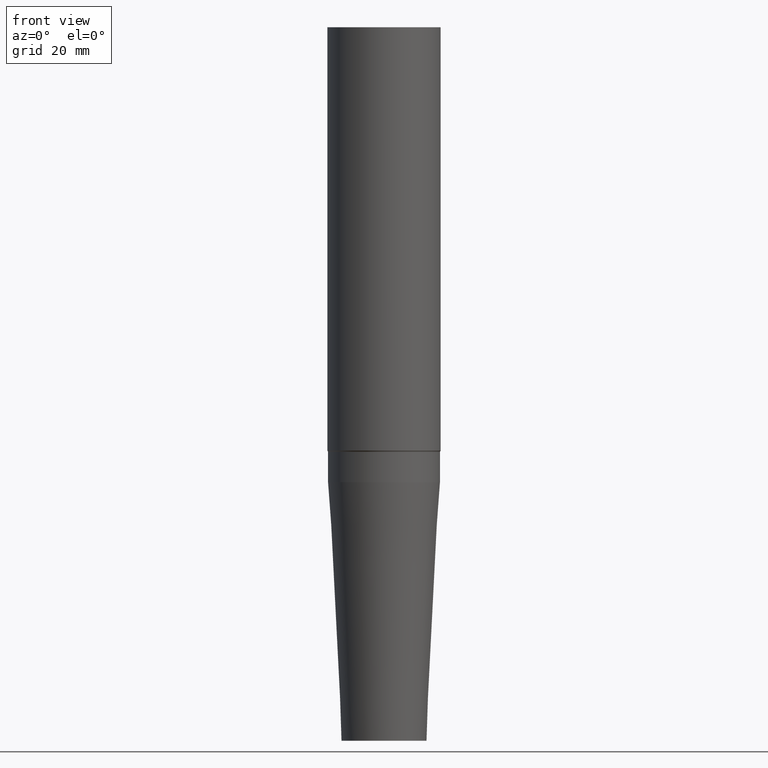
[diagram: clean part render]
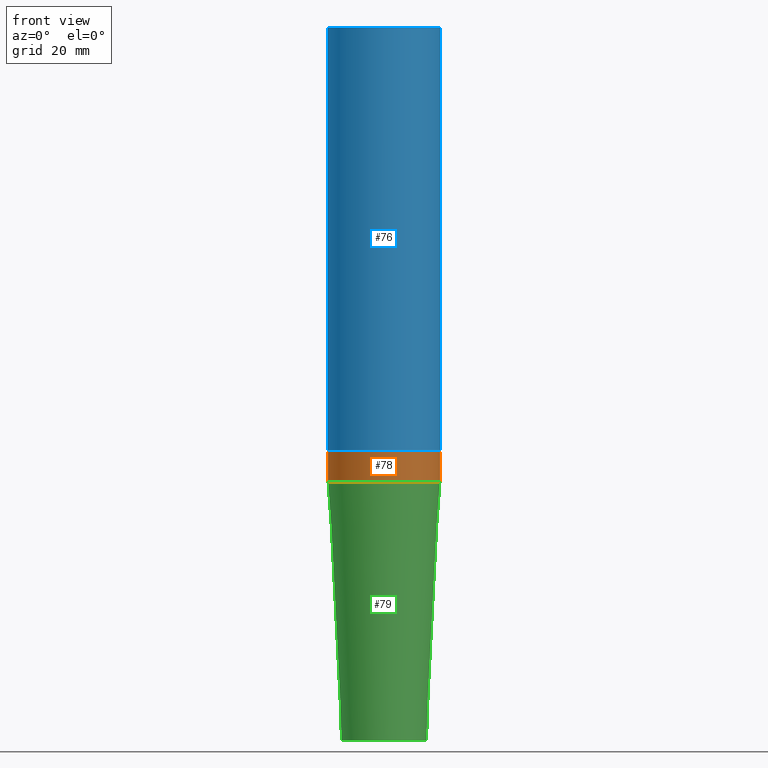
[diagram: same view with three faces highlighted in distinct colors, each labeled with its STEP entity id]
A machine part, front view with three faces highlighted in distinct colors.
Their STEP definitions:

[orange] entity #78 — the highlighted cylindrical surface (bore or boss wall) has radius 15.8 mm, axis along (-0, -0, 1).
#78=ADVANCED_FACE('',(#90,#91),#92,.T.);
#90=FACE_BOUND('',#106,.T.);
#91=FACE_BOUND('',#107,.T.);
#92=CYLINDRICAL_SURFACE('',#108,15.8);
#106=EDGE_LOOP('',(#128));
#107=EDGE_LOOP('',(#129));
#108=AXIS2_PLACEMENT_3D('',#130,#131,#132);
#128=ORIENTED_EDGE('',*,*,#145,.F.);
#129=ORIENTED_EDGE('',*,*,#144,.T.);
#130=CARTESIAN_POINT('',(-4.69983680019865E-015,-9.3996736003973E-015,76.754159705));
#131=DIRECTION('',(-6.12323399573677E-017,-1.22464679914735E-016,1.0));
#132=DIRECTION('',(-1.23259516440783E-032,1.0,1.22464679914735E-016));
#144=EDGE_CURVE('',#151,#151,#152,.T.);
#145=EDGE_CURVE('',#153,#153,#154,.T.);
#151=VERTEX_POINT('',#161);
#152=CIRCLE('',#162,15.8);
#153=VERTEX_POINT('',#163);
#154=CIRCLE('',#164,15.8);
#161=CARTESIAN_POINT('',(-4.95981953654678E-015,15.8,81.0));
#162=AXIS2_PLACEMENT_3D('',#173,#174,#175);
#163=CARTESIAN_POINT('',(-4.43985406385052E-015,15.8,72.50831941));
#164=AXIS2_PLACEMENT_3D('',#176,#177,#178);
#173=CARTESIAN_POINT('',(-4.95981953654678E-015,-9.91963907309356E-015,81.0));
#174=DIRECTION('',(6.12323399573677E-017,1.22464679914735E-016,-1.0));
#175=DIRECTION('',(-1.23259516440783E-032,1.0,1.22464679914735E-016));
#176=CARTESIAN_POINT('',(-4.43985406385052E-015,-8.87970812770104E-015,72.50831941));
#177=DIRECTION('',(6.12323399573677E-017,1.22464679914735E-016,-1.0));
#178=DIRECTION('',(-1.23259516440783E-032,1.0,1.22464679914735E-016));

[blue] entity #76 — the highlighted cylindrical surface (bore or boss wall) has radius 16 mm, axis along (-0, -0, 1).
#76=ADVANCED_FACE('',(#84,#85),#86,.T.);
#84=FACE_BOUND('',#100,.T.);
#85=FACE_BOUND('',#101,.T.);
#86=CYLINDRICAL_SURFACE('',#102,16.0);
#100=EDGE_LOOP('',(#118));
#101=EDGE_LOOP('',(#119));
#102=AXIS2_PLACEMENT_3D('',#120,#121,#122);
#118=ORIENTED_EDGE('',*,*,#143,.F.);
#119=ORIENTED_EDGE('',*,*,#142,.T.);
#120=CARTESIAN_POINT('',(-8.61374951635106E-015,-1.72274990327021E-014,140.67320508));
#121=DIRECTION('',(-6.12323399573677E-017,-1.22464679914735E-016,1.0));
#122=DIRECTION('',(-1.23259516440783E-032,1.0,1.22464679914735E-016));
#142=EDGE_CURVE('',#147,#147,#148,.T.);
#143=EDGE_CURVE('',#149,#149,#150,.T.);
#147=VERTEX_POINT('',#157);
#148=CIRCLE('',#158,16.0);
#149=VERTEX_POINT('',#159);
#150=CIRCLE('',#160,16.0);
#157=CARTESIAN_POINT('',(-1.22464679914735E-014,16.0,200.0));
#158=AXIS2_PLACEMENT_3D('',#167,#168,#169);
#159=CARTESIAN_POINT('',(-4.98103104122859E-015,16.0,81.34641016));
#160=AXIS2_PLACEMENT_3D('',#170,#171,#172);
#167=CARTESIAN_POINT('',(-1.22464679914735E-014,-2.44929359829471E-014,200.0));
#168=DIRECTION('',(6.12323399573677E-017,1.22464679914735E-016,-1.0));
#169=DIRECTION('',(-1.23259516440783E-032,1.0,1.22464679914735E-016));
#170=CARTESIAN_POINT('',(-4.98103104122859E-015,-9.96206208245717E-015,81.34641016));
#171=DIRECTION('',(6.12323399573677E-017,1.22464679914735E-016,-1.0));
#172=DIRECTION('',(-1.23259516440783E-032,1.0,1.22464679914735E-016));

[green] entity #79 — the highlighted conical surface has half-angle 3 deg.
#79=ADVANCED_FACE('',(#93,#94),#95,.T.);
#93=FACE_BOUND('',#109,.T.);
#94=FACE_BOUND('',#110,.T.);
#95=CONICAL_SURFACE('',#111,13.9000000010917,0.0523598775322257);
#109=EDGE_LOOP('',(#133));
#110=EDGE_LOOP('',(#134));
#111=AXIS2_PLACEMENT_3D('',#135,#136,#137);
#133=ORIENTED_EDGE('',*,*,#146,.F.);
#134=ORIENTED_EDGE('',*,*,#145,.T.);
#135=CARTESIAN_POINT('',(-2.21992703192526E-015,-4.43985406385052E-015,36.254159705));
#136=DIRECTION('',(-6.12323399573677E-017,-1.22464679914735E-016,1.0));
#137=DIRECTION('',(-1.23259516440783E-032,1.0,1.22464679914735E-016));
#145=EDGE_CURVE('',#153,#153,#154,.T.);
#146=EDGE_CURVE('',#155,#155,#156,.T.);
#153=VERTEX_POINT('',#163);
#154=CIRCLE('',#164,15.8);
#155=VERTEX_POINT('',#165);
#156=CIRCLE('',#166,12.0000000021834);
#163=CARTESIAN_POINT('',(-4.43985406385052E-015,15.8,72.50831941));
#164=AXIS2_PLACEMENT_3D('',#176,#177,#178);
#165=CARTESIAN_POINT('',(0.0,12.0000000021834,0.0));
#166=AXIS2_PLACEMENT_3D('',#179,#180,#181);
#176=CARTESIAN_POINT('',(-4.43985406385052E-015,-8.87970812770104E-015,72.50831941));
#177=DIRECTION('',(6.12323399573677E-017,1.22464679914735E-016,-1.0));
#178=DIRECTION('',(-1.23259516440783E-032,1.0,1.22464679914735E-016));
#179=CARTESIAN_POINT('',(0.0,0.0,0.0));
#180=DIRECTION('',(6.12323399573677E-017,1.22464679914735E-016,-1.0));
#181=DIRECTION('',(-1.23259516440783E-032,1.0,1.22464679914735E-016));